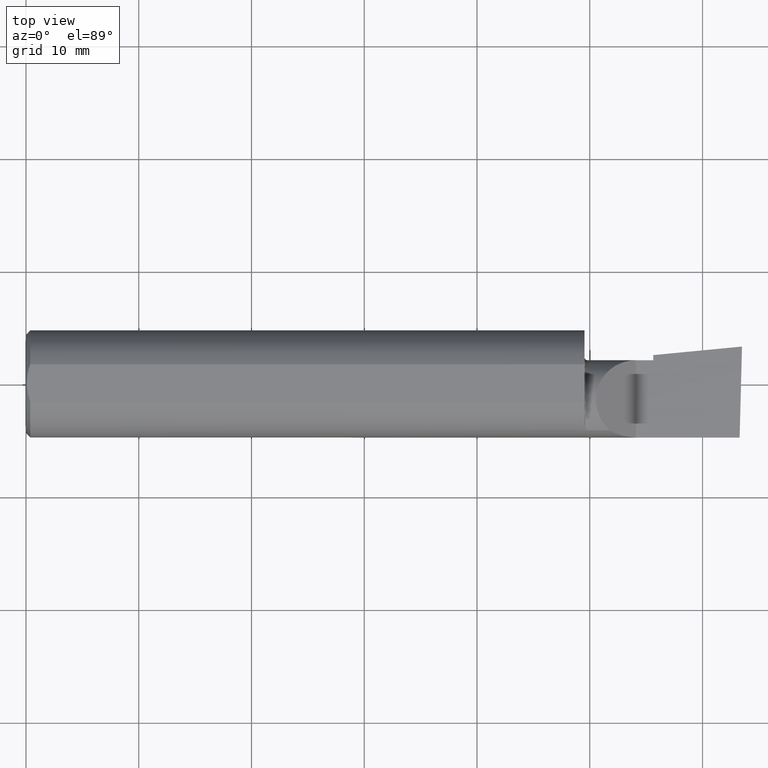
[diagram: clean part render]
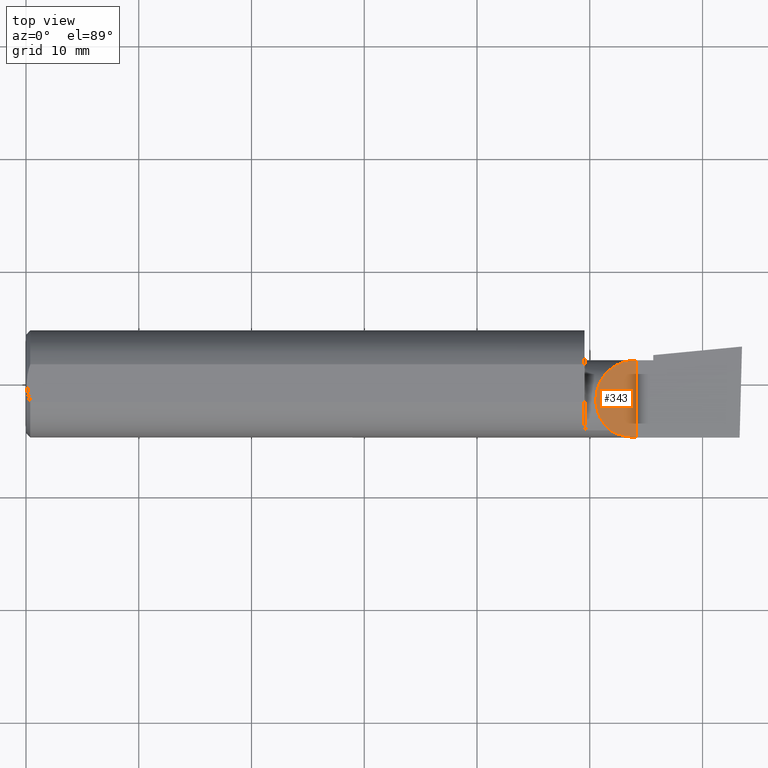
[diagram: same view with one face highlighted and labeled with its STEP entity id]
A machine part, top view. The second image highlights one B-rep face of the part: STEP entity #343.
In plain terms, the highlighted planar face has unit normal (-0.7071, 0, -0.7071).
Its self-contained STEP definition (entity closure, byte-faithful):
#10 = ORIENTED_EDGE ( 'NONE', *, *, #477, .T. ) ;
#17 = CARTESIAN_POINT ( 'NONE',  ( 1.975085956200449022, 0.08265000000000000124, 0.1549140437995494002 ) ) ;
#33 = VERTEX_POINT ( 'NONE', #111 ) ;
#49 = VERTEX_POINT ( 'NONE', #541 ) ;
#70 = FACE_OUTER_BOUND ( 'NONE', #495, .T. ) ;
#79 = CARTESIAN_POINT ( 'NONE',  ( 2.129999999999999893, -0.2500000000000000555, 1.065442715258197396E-16 ) ) ;
#98 = CARTESIAN_POINT ( 'NONE',  ( 2.066758987970638284, -0.1792580844883770730, 0.06324101202936138755 ) ) ;
#111 = CARTESIAN_POINT ( 'NONE',  ( 2.038695632261437130, -0.1635956445993029529, 0.09130436773856191734 ) ) ;
#136 = EDGE_CURVE ( 'NONE', #49, #33, #260, .T. ) ;
#158 = CARTESIAN_POINT ( 'NONE',  ( 2.038695632261437130, -0.1635956445993029529, 0.09130436773856191734 ) ) ;
#178 = ORIENTED_EDGE ( 'NONE', *, *, #351, .F. ) ;
#179 = CARTESIAN_POINT ( 'NONE',  ( 2.097861799102314961, -0.1873500000000000165, 0.03213820089768509858 ) ) ;
#193 = CARTESIAN_POINT ( 'NONE',  ( 2.129999999999999893, -0.1873499999999999888, 1.065442715258197396E-16 ) ) ;
#199 = CARTESIAN_POINT ( 'NONE',  ( 2.129999999999999893, -0.2500000000000000555, 1.065442715258197396E-16 ) ) ;
#238 = VECTOR ( 'NONE', #288, 39.37007874015748143 ) ;
#249 = CARTESIAN_POINT ( 'NONE',  ( 2.129999999999999893, 0.08264999999999990410, 1.065442715258197396E-16 ) ) ;
#254 = LINE ( 'NONE', #199, #238 ) ;
#260 =( BOUNDED_CURVE ( )  B_SPLINE_CURVE ( 3, ( #193, #179, #98, #158 ),
 .UNSPECIFIED., .F., .T. ) 
 B_SPLINE_CURVE_WITH_KNOTS ( ( 4, 4 ),
 ( 4.712388980384689674, 5.221437360734125122 ),
 .UNSPECIFIED. ) 
 CURVE ( )  GEOMETRIC_REPRESENTATION_ITEM ( )  RATIONAL_B_SPLINE_CURVE ( ( 1.000000000000000000, 0.9785221379938656705, 0.9785221379938656705, 1.000000000000000000 ) ) 
 REPRESENTATION_ITEM ( '' )  );
#288 = DIRECTION ( 'NONE',  ( -0.0000000000000000000, 1.000000000000000000, -0.0000000000000000000 ) ) ;
#343 = ADVANCED_FACE ( 'NONE', ( #70 ), #526, .F. ) ;
#351 = EDGE_CURVE ( 'NONE', #33, #546, #416, .T. ) ;
#406 = ORIENTED_EDGE ( 'NONE', *, *, #136, .F. ) ;
#410 = CARTESIAN_POINT ( 'NONE',  ( 1.921229036482944075, -0.06260079402492431389, 0.2087709635170538203 ) ) ;
#416 =( BOUNDED_CURVE ( )  B_SPLINE_CURVE ( 3, ( #466, #410, #17, #249 ),
 .UNSPECIFIED., .F., .T. ) 
 B_SPLINE_CURVE_WITH_KNOTS ( ( 4, 4 ),
 ( 5.422530673488458852, 7.853981633974482790 ),
 .UNSPECIFIED. ) 
 CURVE ( )  GEOMETRIC_REPRESENTATION_ITEM ( )  RATIONAL_B_SPLINE_CURVE ( ( 1.000000000000000000, 0.5651045289226863666, 0.5651045289226863666, 1.000000000000000000 ) ) 
 REPRESENTATION_ITEM ( '' )  );
#466 = CARTESIAN_POINT ( 'NONE',  ( 2.038695632261437130, -0.1635956445993029529, 0.09130436773856191734 ) ) ;
#471 = DIRECTION ( 'NONE',  ( -0.7071067811865439090, 0.0000000000000000000, -0.7071067811865512365 ) ) ;
#477 = EDGE_CURVE ( 'NONE', #49, #546, #254, .T. ) ;
#495 = EDGE_LOOP ( 'NONE', ( #178, #406, #10 ) ) ;
#517 = DIRECTION ( 'NONE',  ( -0.7071067811865511255, 0.0000000000000000000, 0.7071067811865437980 ) ) ;
#526 = PLANE ( 'NONE',  #561 ) ;
#541 = CARTESIAN_POINT ( 'NONE',  ( 2.129999999999999893, -0.1873499999999999888, 1.065442715258197396E-16 ) ) ;
#546 = VERTEX_POINT ( 'NONE', #583 ) ;
#561 = AXIS2_PLACEMENT_3D ( 'NONE', #79, #471, #517 ) ;
#583 = CARTESIAN_POINT ( 'NONE',  ( 2.129999999999999893, 0.08264999999999990410, 1.065442715258197396E-16 ) ) ;